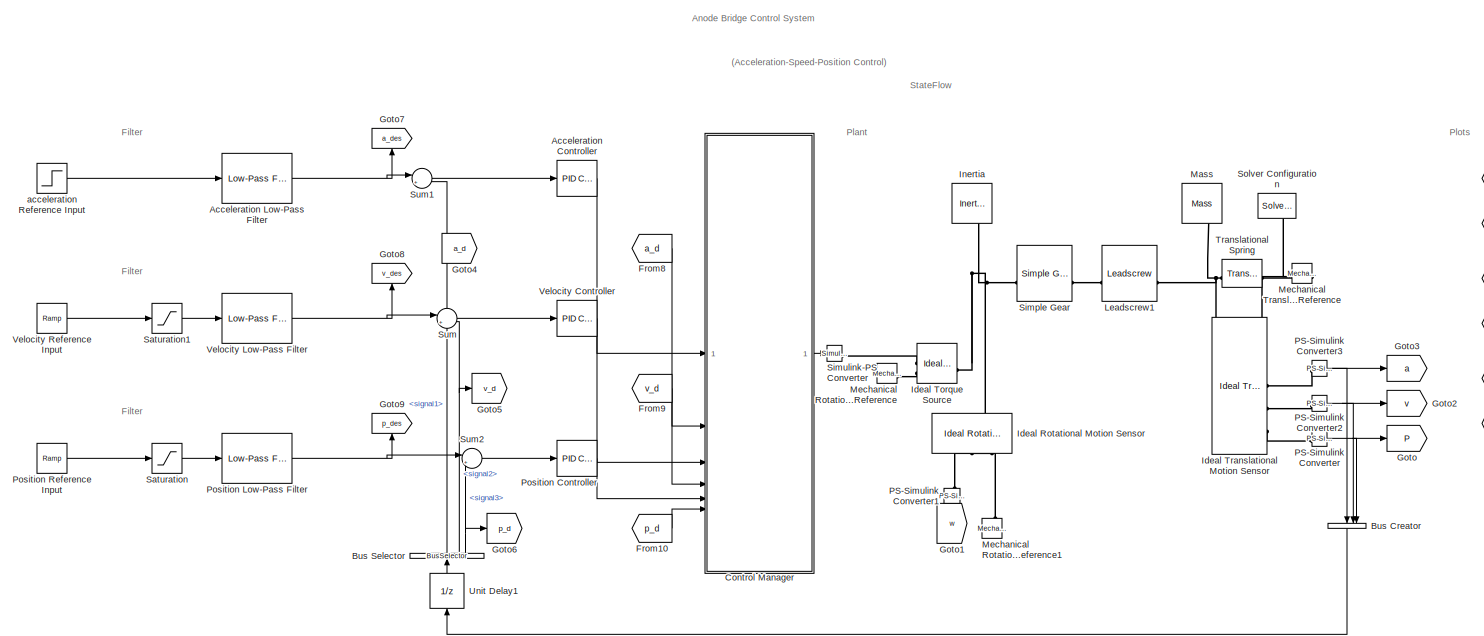
[diagram: root canvas - part 1/2, most of the canvas]
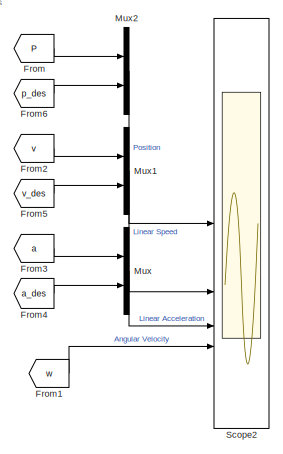
[diagram: root canvas - part 2/2, middle right region]
MODEL slx_e64553017098
KIND model
CONFIG AbsTol = auto
CONFIG EnableMultiTasking = off
CONFIG FixedStep = auto
CONFIG MaxStep = auto
CONFIG MinStep = auto
CONFIG RelTol = 1e-3
CONFIG SampleTimeConstraint = Unconstrained
CONFIG SolverName = ode15s
CONFIG StartTime = 0.0
CONFIG StopTime = 1050
BLOCK [Reference] Acceleration Controller  REF=slpidlib/PID Controller
  LibrarySourceBlock = hdlsllib/HDL Floating Point\nOperations/Discrete PID Controller
  SourceBlock = slpidlib/PID Controller
  SourceType = PID 1dof
BLOCK [Reference] Acceleration Low-Pass Filter   REF=eeGeneralControl/Low-Pass Filter
(Discrete or Continuous)
  LibrarySourceBlock = ee_sl_lib/General Control/Low-Pass Filter\n(Discrete or Continuous)
  SourceBlock = eeGeneralControl/Low-Pass Filter\n(Discrete or Continuous)
  SourceType = Low-Pass Filter (Discrete or Continuous)
BLOCK [BusCreator] Bus Creator
  DisplayOption = bar
  InheritFromInputs = on
  Inputs = 3
  NameLocation = left
BLOCK [BusSelector] Bus Selector
  NameLocation = right
  OutputSignals = signal1,signal2,signal3
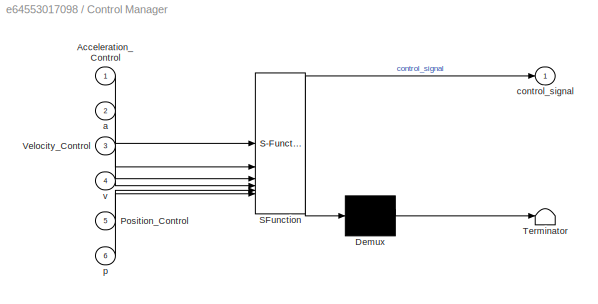
BLOCK [SubSystem] Control Manager
  ErrorFcn = Stateflow.Translate.translate
  PermitHierarchicalResolution = ExplicitOnly
  SFBlockType = Chart
  TreatAsAtomicUnit = on
BLOCK [Demux] Control Manager/ Demux 
  Outputs = 1
BLOCK [S-Function] Control Manager/ SFunction 
  EnableBusSupport = on
  FunctionName = sf_sfun
  PortCounts = [6 2]
  SFcnIsStateOwnerBlock = off
  SFunctionDeploymentMode = off
  Tag = Stateflow S-Function 3
BLOCK [Terminator] Control Manager/ Terminator 
BLOCK [Inport] Control Manager/Acceleration_Control
BLOCK [Inport] Control Manager/Position_Control
  Port = 5
BLOCK [Inport] Control Manager/Velocity_Control
  Port = 3
BLOCK [Inport] Control Manager/a
  Port = 2
BLOCK [Outport] Control Manager/control_signal
BLOCK [Inport] Control Manager/p
  Port = 6
BLOCK [Inport] Control Manager/v
  Port = 4
BLOCK [From] From
  GotoTag = P
BLOCK [From] From1
  GotoTag = w
BLOCK [From] From10
  GotoTag = p_d
BLOCK [From] From2
  GotoTag = v
BLOCK [From] From3
  GotoTag = a
BLOCK [From] From4
  GotoTag = a_des
BLOCK [From] From5
  GotoTag = v_des
BLOCK [From] From6
  GotoTag = p_des
BLOCK [From] From8
  GotoTag = a_d
BLOCK [From] From9
  GotoTag = v_d
BLOCK [Goto] Goto
  GotoTag = P
BLOCK [Goto] Goto1
  GotoTag = w
  NameLocation = left
BLOCK [Goto] Goto2
  GotoTag = v
BLOCK [Goto] Goto3
  GotoTag = a
BLOCK [Goto] Goto4
  GotoTag = a_d
BLOCK [Goto] Goto5
  GotoTag = v_d
BLOCK [Goto] Goto6
  GotoTag = p_d
BLOCK [Goto] Goto7
  GotoTag = a_des
  NameLocation = right
BLOCK [Goto] Goto8
  GotoTag = v_des
  NameLocation = right
BLOCK [Goto] Goto9
  GotoTag = p_des
  NameLocation = right
BLOCK [Reference] Ideal Rotational Motion Sensor  REF=fl_lib/Mechanical/Mechanical Sensors/Ideal Rotational
Motion Sensor
  NameLocation = left
  SourceBlock = fl_lib/Mechanical/Mechanical Sensors/Ideal Rotational\nMotion Sensor
  SourceType = Ideal Rotational\nMotion Sensor
BLOCK [Reference] Ideal Torque Source  REF=fl_lib/Mechanical/Mechanical Sources/Ideal Torque Source
  SourceBlock = fl_lib/Mechanical/Mechanical Sources/Ideal Torque Source
  SourceType = Ideal Torque Source
BLOCK [Reference] Ideal Translational Motion Sensor  REF=fl_lib/Mechanical/Mechanical Sensors/Ideal Translational
Motion Sensor
  SourceBlock = fl_lib/Mechanical/Mechanical Sensors/Ideal Translational\nMotion Sensor
  SourceType = Ideal Translational\nMotion Sensor
BLOCK [Reference] Inertia  REF=fl_lib/Mechanical/Rotational Elements/Inertia
  NameLocation = left
  SourceBlock = fl_lib/Mechanical/Rotational Elements/Inertia
  SourceType = Inertia
BLOCK [Reference] Leadscrew1  REF=sdl_lib/Gears/Rotational-
Translational/Leadscrew
  SourceBlock = sdl_lib/Gears/Rotational-\nTranslational/Leadscrew
  SourceType = Leadscrew
BLOCK [Reference] Mass  REF=fl_lib/Mechanical/Translational
Elements/Mass
  NameLocation = left
  SourceBlock = fl_lib/Mechanical/Translational\nElements/Mass
  SourceType = Mass
BLOCK [Reference] Mechanical Rotational Reference  REF=fl_lib/Mechanical/Rotational Elements/Mechanical
Rotational Reference
  SourceBlock = fl_lib/Mechanical/Rotational Elements/Mechanical\nRotational Reference
  SourceType = Mechanical\nRotational Reference
BLOCK [Reference] Mechanical Rotational Reference1  REF=fl_lib/Mechanical/Rotational Elements/Mechanical
Rotational Reference
  NameLocation = right
  SourceBlock = fl_lib/Mechanical/Rotational Elements/Mechanical\nRotational Reference
  SourceType = Mechanical\nRotational Reference
BLOCK [Reference] Mechanical Translational Reference  REF=fl_lib/Mechanical/Translational
Elements/Mechanical
Translational
Reference
  NameLocation = top
  SourceBlock = fl_lib/Mechanical/Translational\nElements/Mechanical\nTranslational\nReference
  SourceType = Mechanical\nTranslational\nReference
BLOCK [Mux] Mux
  DisplayOption = bar
  Inputs = 2
BLOCK [Mux] Mux1
  DisplayOption = bar
  Inputs = 2
BLOCK [Mux] Mux2
  DisplayOption = bar
  Inputs = 2
BLOCK [Reference] PS-Simulink Converter  REF=nesl_utility/PS-Simulink
Converter
  SourceBlock = nesl_utility/PS-Simulink\nConverter
  SourceType = PS-Simulink\nConverter
BLOCK [Reference] PS-Simulink Converter1  REF=nesl_utility/PS-Simulink
Converter
  NameLocation = left
  SourceBlock = nesl_utility/PS-Simulink\nConverter
  SourceType = PS-Simulink\nConverter
BLOCK [Reference] PS-Simulink Converter2  REF=nesl_utility/PS-Simulink
Converter
  SourceBlock = nesl_utility/PS-Simulink\nConverter
  SourceType = PS-Simulink\nConverter
BLOCK [Reference] PS-Simulink Converter3  REF=nesl_utility/PS-Simulink
Converter
  SourceBlock = nesl_utility/PS-Simulink\nConverter
  SourceType = PS-Simulink\nConverter
BLOCK [Reference] Position Controller  REF=slpidlib/PID Controller
  LibrarySourceBlock = hdlsllib/Discrete/Discrete PID Controller
  SourceBlock = slpidlib/PID Controller
  SourceType = PID 1dof
BLOCK [Reference] Position Low-Pass Filter  REF=eeGeneralControl/Low-Pass Filter
(Discrete or Continuous)
  LibrarySourceBlock = ee_sl_lib/General Control/Low-Pass Filter\n(Discrete or Continuous)
  SourceBlock = eeGeneralControl/Low-Pass Filter\n(Discrete or Continuous)
  SourceType = Low-Pass Filter (Discrete or Continuous)
BLOCK [Reference] Position Reference Input  REF=simulink/Sources/Ramp
  SourceBlock = simulink/Sources/Ramp
  SourceType = Ramp
BLOCK [Saturate] Saturation
  LowerLimit = 0
  UpperLimit = 2010
BLOCK [Saturate] Saturation1
  LowerLimit = -2
  UpperLimit = 2
BLOCK [Scope] Scope2
  Floating = off
  NumInputPorts = 4
  ScopeSpecificationString = Simulink.scopes.TimeScopeBlockCfg('CurrentConfiguration', extmgr.ConfigurationSet(extmgr.Configuration('Core','General UI',true),extmgr.Configuration('Core','Source UI',true),extmgr.Configuration('Sources','WiredSimulink',true,'DataLoggingVariableName','ScopeData2'),extmgr.Configuration('Visuals','Time Domain',true,'SerializedDisplays',{struct('MinYLimReal','-251.22223','MaxYLimReal','2261.0001','...<+4508ch>
BLOCK [Reference] Simple Gear  REF=sdl_lib/Gears/Simple Gear
  SourceBlock = sdl_lib/Gears/Simple Gear
  SourceType = Simple Gear
BLOCK [Reference] Simulink-PS Converter  REF=nesl_utility/Simulink-PS
Converter
  SourceBlock = nesl_utility/Simulink-PS\nConverter
  SourceType = Simulink-PS\nConverter
BLOCK [Reference] Solver Configuration  REF=nesl_utility/Solver
Configuration
  NameLocation = left
  SourceBlock = nesl_utility/Solver\nConfiguration
  SourceType = Solver\nConfiguration
BLOCK [Sum] Sum
  Inputs = |+-
BLOCK [Sum] Sum1
  Inputs = |+-
BLOCK [Sum] Sum2
  Inputs = |+-
BLOCK [Reference] Translational Spring  REF=fl_lib/Mechanical/Translational
Elements/Translational Spring
  SourceBlock = fl_lib/Mechanical/Translational\nElements/Translational Spring
  SourceType = Translational Spring
BLOCK [UnitDelay] Unit Delay1
  HasFrameUpgradeWarning = on
  NameLocation = right
  SampleTime = -1
BLOCK [Reference] Velocity Controller  REF=slpidlib/PID Controller
  LibrarySourceBlock = hdlsllib/Discrete/Discrete PID Controller
  SourceBlock = slpidlib/PID Controller
  SourceType = PID 1dof
BLOCK [Reference] Velocity Low-Pass Filter  REF=eeGeneralControl/Low-Pass Filter
(Discrete or Continuous)
  LibrarySourceBlock = ee_sl_lib/General Control/Low-Pass Filter\n(Discrete or Continuous)
  SourceBlock = eeGeneralControl/Low-Pass Filter\n(Discrete or Continuous)
  SourceType = Low-Pass Filter (Discrete or Continuous)
BLOCK [Reference] Velocity Reference Input  REF=simulink/Sources/Ramp
  SourceBlock = simulink/Sources/Ramp
  SourceType = Ramp
BLOCK [Step] acceleration Reference Input
  After = 2
  SampleTime = 0
ANNOTATION (root): (Acceleration-Speed-Position Control)
ANNOTATION (root): Anode Bridge Control System
ANNOTATION (root): Filter
ANNOTATION (root): Plant
ANNOTATION (root): Plots
ANNOTATION (root): StateFlow
LINE Acceleration Controller:1 -> Control Manager:1
NET Acceleration Low-Pass Filter :1 -> Goto7:1, Sum1:1
LINE Bus Creator:1 -> Unit Delay1:1
NET Bus Selector:1 -> Goto4:1, Sum1:2
NET Bus Selector:2 -> Goto5:1, Sum:2
NET Bus Selector:3 -> Goto6:1, Sum2:2
LINE Control Manager:1 -> Simulink-PS Converter:1
LINE From10:1 -> Control Manager:6
LINE From1:1 -> Scope2:4
LINE From2:1 -> Mux1:1
LINE From3:1 -> Mux:1
LINE From4:1 -> Mux:2
LINE From5:1 -> Mux1:2
LINE From6:1 -> Mux2:2
LINE From8:1 -> Control Manager:2
LINE From9:1 -> Control Manager:4
LINE From:1 -> Mux2:1
LINE Mux1:1 -> Scope2:2
LINE Mux2:1 -> Scope2:1
LINE Mux:1 -> Scope2:3
LINE PS-Simulink Converter1:1 -> Goto1:1
NET PS-Simulink Converter2:1 -> Bus Creator:2, Goto2:1
NET PS-Simulink Converter3:1 -> Bus Creator:1, Goto3:1
NET PS-Simulink Converter:1 -> Bus Creator:3, Goto:1
LINE Position Controller:1 -> Control Manager:5
NET Position Low-Pass Filter:1 -> Goto9:1, Sum2:1
LINE Position Reference Input:1 -> Saturation:1
LINE Saturation1:1 -> Velocity Low-Pass Filter:1
LINE Saturation:1 -> Position Low-Pass Filter:1
LINE Sum1:1 -> Acceleration Controller:1
LINE Sum2:1 -> Position Controller:1
LINE Sum:1 -> Velocity Controller:1
LINE Unit Delay1:1 -> Bus Selector:1
LINE Velocity Controller:1 -> Control Manager:3
NET Velocity Low-Pass Filter:1 -> Goto8:1, Sum:1
LINE Velocity Reference Input:1 -> Saturation1:1
LINE acceleration Reference Input:1 -> Acceleration Low-Pass Filter :1
PNET net1: Ideal Rotational Motion Sensor:LConn1 -- Ideal Torque Source:LConn1 -- Inertia:LConn1 -- Simple Gear:LConn1
PLINE Ideal Rotational Motion Sensor:RConn1 -- Mechanical Rotational Reference1:LConn1
PLINE Ideal Rotational Motion Sensor:RConn2 -- PS-Simulink Converter1:LConn1
PLINE Ideal Torque Source:RConn1 -- Simulink-PS Converter:RConn1
PLINE Ideal Torque Source:RConn2 -- Mechanical Rotational Reference:LConn1
PNET net2: Ideal Translational Motion Sensor:LConn1 -- Leadscrew1:RConn1 -- Mass:LConn1 -- Translational Spring:LConn1
PNET net3: Ideal Translational Motion Sensor:RConn1 -- Mechanical Translational Reference:LConn1 -- Solver Configuration:RConn1 -- Translational Spring:RConn1
PLINE Ideal Translational Motion Sensor:RConn2 -- PS-Simulink Converter3:LConn1
PLINE Ideal Translational Motion Sensor:RConn3 -- PS-Simulink Converter2:LConn1
PLINE Ideal Translational Motion Sensor:RConn4 -- PS-Simulink Converter:LConn1
PLINE Leadscrew1:LConn1 -- Simple Gear:RConn1
note: NET lines group one-source signal fan-out (src -> all destinations, sorted); 1:1 wires keep LINE; PNET lines group multi-terminal physical nets as a canonical sorted terminal list (undirected conserving connections); 2-terminal nets keep the pairwise PLINE form
CHART Control Manager states=3 transitions=5
  STATE_LABEL 'Use_Position_Control\n\nentry, during:\n control_signal = Position_Control;'
  STATE_LABEL 'Use_Acceleration_Control\n\nentry, during:\n control_signal = Acceleration_Control;'
  STATE_LABEL 'Use_Velocity_Control\n\nentry, during:\n control_signal = Velocity_Control;'
CHART  states=0 transitions=0
